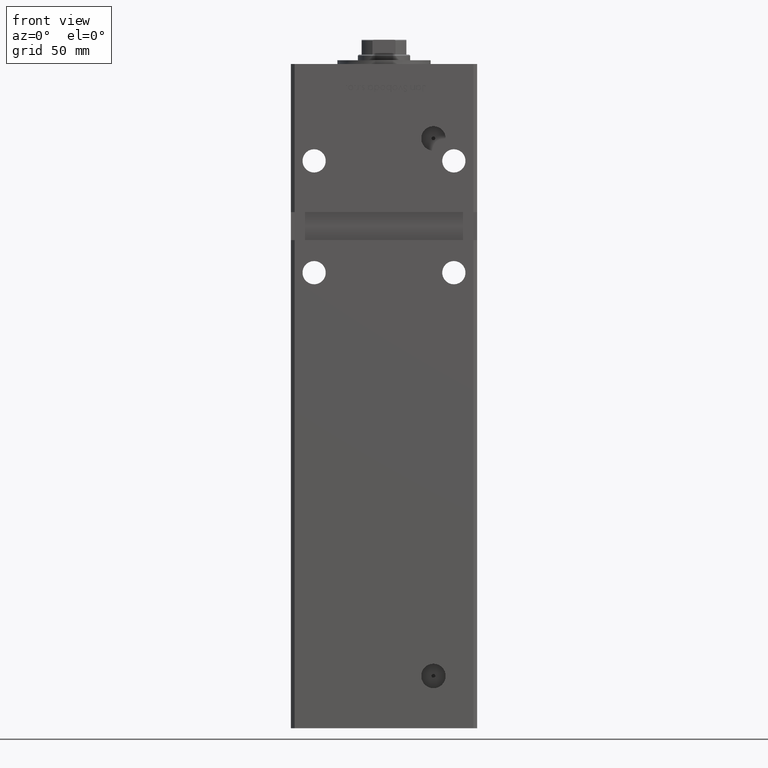
[diagram: clean part render]
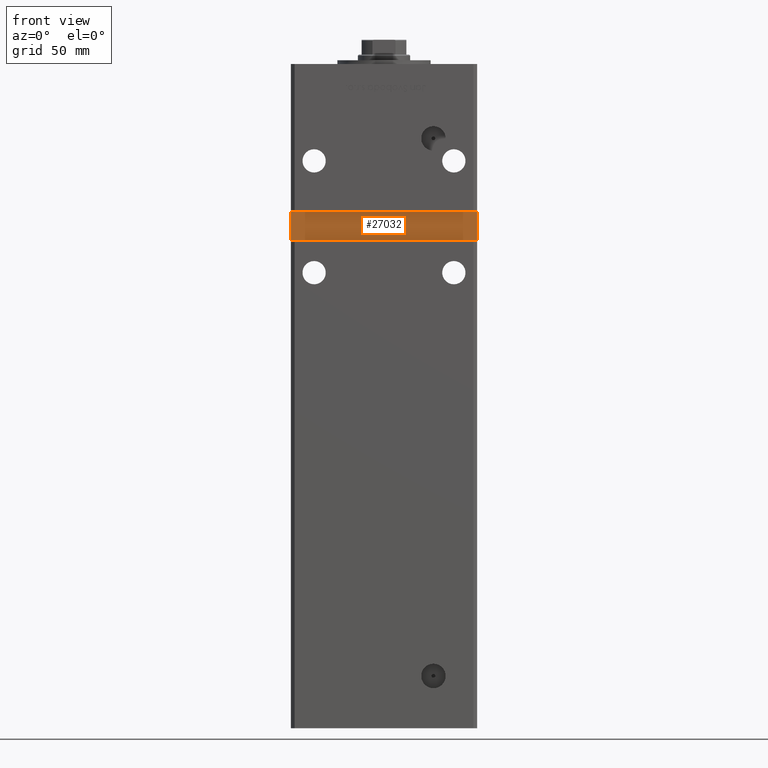
[diagram: same view with one face highlighted and labeled with its STEP entity id]
A machine part, front view. The second image highlights one B-rep face of the part: STEP entity #27032.
In plain terms, the highlighted planar face has unit normal (0, -1, 0).
Its self-contained STEP definition (entity closure, byte-faithful):
#1640 = DIRECTION ( 'NONE',  ( 0.000000000000000000, -1.000000000000000000, 0.000000000000000000 ) ) ;
#2188 = CARTESIAN_POINT ( 'NONE',  ( 0.000000000000000000, -38.50000000000000000, 0.000000000000000000 ) ) ;
#2898 = EDGE_LOOP ( 'NONE', ( #31035, #45083, #3629, #11780 ) ) ;
#3272 = EDGE_CURVE ( 'NONE', #36402, #22698, #10045, .T. ) ;
#3629 = ORIENTED_EDGE ( 'NONE', *, *, #35782, .T. ) ;
#3755 = EDGE_CURVE ( 'NONE', #22311, #21026, #14528, .T. ) ;
#5686 = FACE_OUTER_BOUND ( 'NONE', #2898, .T. ) ;
#7230 = DIRECTION ( 'NONE',  ( 0.000000000000000000, 0.000000000000000000, -1.000000000000000000 ) ) ;
#9721 = DIRECTION ( 'NONE',  ( 0.000000000000000000, -0.000000000000000000, -1.000000000000000000 ) ) ;
#10045 = LINE ( 'NONE', #10313, #39720 ) ;
#10313 = CARTESIAN_POINT ( 'NONE',  ( -49.99999999999998579, -38.50000000000000000, 258.0000000000000000 ) ) ;
#11780 = ORIENTED_EDGE ( 'NONE', *, *, #3755, .T. ) ;
#12552 = CARTESIAN_POINT ( 'NONE',  ( 49.99999999999998579, -38.50000000000000000, 258.0000000000000000 ) ) ;
#13999 = DIRECTION ( 'NONE',  ( 1.000000000000000000, 0.000000000000000000, 0.000000000000000000 ) ) ;
#14528 = LINE ( 'NONE', #22849, #33667 ) ;
#18816 = CARTESIAN_POINT ( 'NONE',  ( 49.99999999999998579, -38.49999999999999289, 243.0000000000000000 ) ) ;
#21026 = VERTEX_POINT ( 'NONE', #18816 ) ;
#22311 = VERTEX_POINT ( 'NONE', #37897 ) ;
#22698 = VERTEX_POINT ( 'NONE', #35421 ) ;
#22838 = EDGE_CURVE ( 'NONE', #21026, #36402, #34281, .T. ) ;
#22849 = CARTESIAN_POINT ( 'NONE',  ( -49.99999999999998579, -38.50000000000000000, 243.0000000000000000 ) ) ;
#27032 = ADVANCED_FACE ( 'NONE', ( #5686 ), #38985, .T. ) ;
#28906 = DIRECTION ( 'NONE',  ( -0.000000000000000000, -0.000000000000000000, 1.000000000000000000 ) ) ;
#31035 = ORIENTED_EDGE ( 'NONE', *, *, #22838, .T. ) ;
#33667 = VECTOR ( 'NONE', #13999, 1000.000000000000000 ) ;
#34281 = LINE ( 'NONE', #12552, #39274 ) ;
#35421 = CARTESIAN_POINT ( 'NONE',  ( -49.99999999999998579, -38.50000000000000000, 258.0000000000000000 ) ) ;
#35782 = EDGE_CURVE ( 'NONE', #22698, #22311, #40253, .T. ) ;
#36402 = VERTEX_POINT ( 'NONE', #51629 ) ;
#37897 = CARTESIAN_POINT ( 'NONE',  ( -49.99999999999998579, -38.50000000000000000, 243.0000000000000000 ) ) ;
#38413 = AXIS2_PLACEMENT_3D ( 'NONE', #2188, #1640, #9721 ) ;
#38985 = PLANE ( 'NONE',  #38413 ) ;
#39274 = VECTOR ( 'NONE', #28906, 1000.000000000000000 ) ;
#39720 = VECTOR ( 'NONE', #50884, 1000.000000000000000 ) ;
#40253 = LINE ( 'NONE', #52623, #49947 ) ;
#45083 = ORIENTED_EDGE ( 'NONE', *, *, #3272, .T. ) ;
#49947 = VECTOR ( 'NONE', #7230, 1000.000000000000000 ) ;
#50884 = DIRECTION ( 'NONE',  ( -1.000000000000000000, -0.000000000000000000, -0.000000000000000000 ) ) ;
#51629 = CARTESIAN_POINT ( 'NONE',  ( 49.99999999999998579, -38.50000000000000000, 258.0000000000000000 ) ) ;
#52623 = CARTESIAN_POINT ( 'NONE',  ( -49.99999999999998579, -38.50000000000000000, 258.0000000000000000 ) ) ;